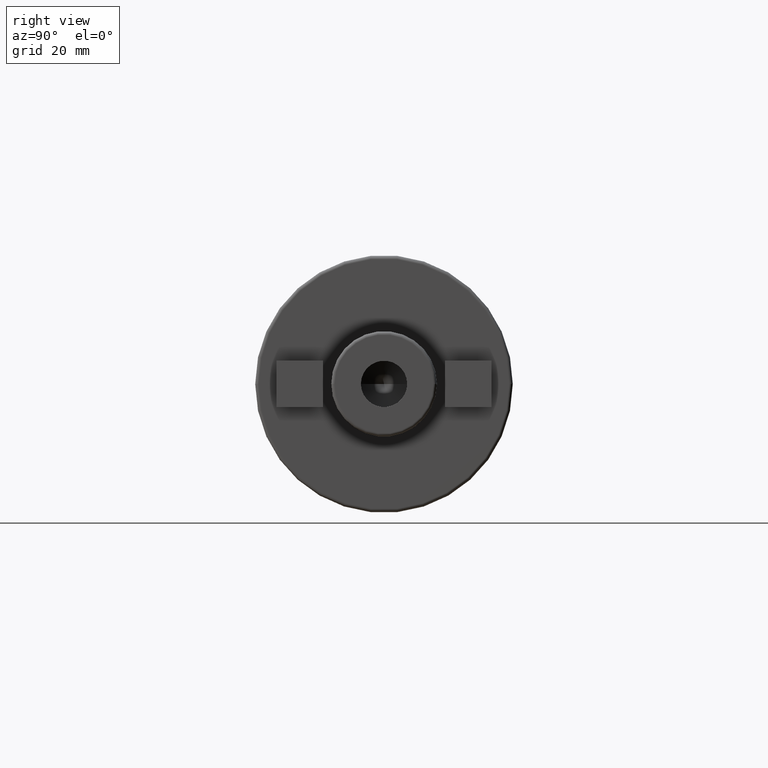
[diagram: clean part render]
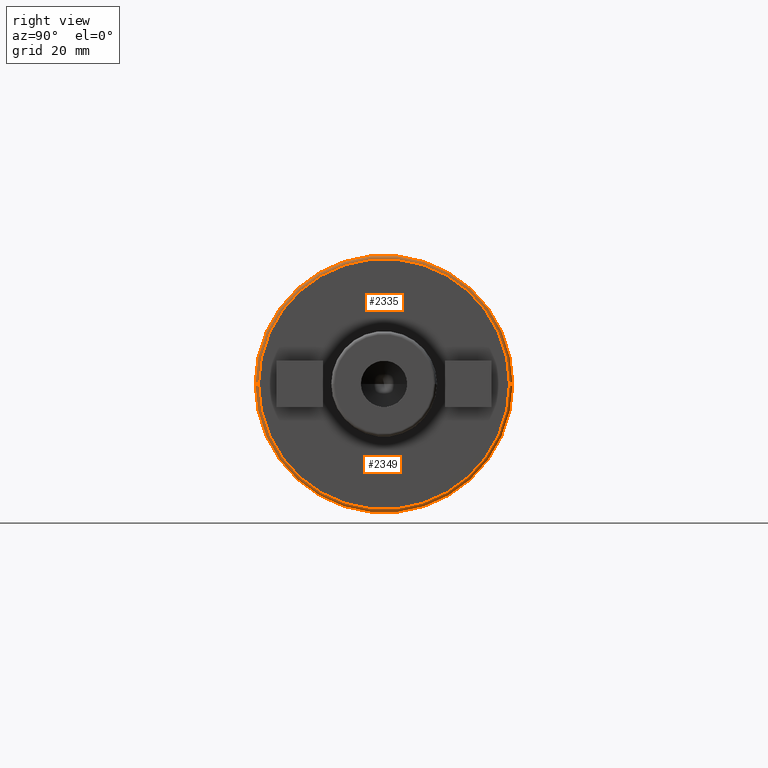
[diagram: same view with one multi-face feature highlighted, each face labeled with its STEP entity id]
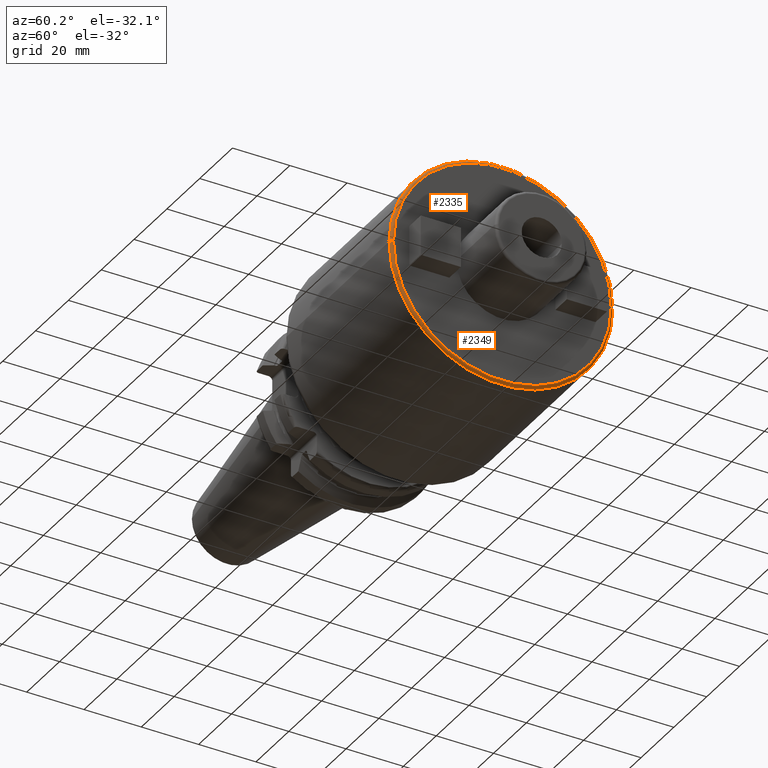
[diagram: same view with one multi-face feature highlighted, each face labeled with its STEP entity id]
A machine part, right view. The highlighted faces form ONE feature: a constant-radius fillet chain: 2 tangent blend faces with common blend radius 1 mm. The faces share edges in the B-rep.
A second angle (auxiliary view) of the same feature is appended — it is thin or edge-on in the first view.
Their STEP definitions:
[1] entity #2335 (Torus):
#377=CARTESIAN_POINT('',(9.9E1,0.E0,0.E0));
#378=DIRECTION('',(1.E0,0.E0,0.E0));
#379=DIRECTION('',(0.E0,1.E0,0.E0));
#380=AXIS2_PLACEMENT_3D('',#377,#378,#379);
#387=CARTESIAN_POINT('',(9.9E1,-3.8E1,0.E0));
#388=DIRECTION('',(0.E0,0.E0,-1.E0));
#389=DIRECTION('',(1.E0,0.E0,0.E0));
#390=AXIS2_PLACEMENT_3D('',#387,#388,#389);
#392=CARTESIAN_POINT('',(9.9E1,3.8E1,0.E0));
#393=DIRECTION('',(0.E0,0.E0,1.E0));
#394=DIRECTION('',(1.E0,-2.131628207280E-14,0.E0));
#395=AXIS2_PLACEMENT_3D('',#392,#393,#394);
#430=CARTESIAN_POINT('',(1.E2,0.E0,0.E0));
#431=DIRECTION('',(1.E0,0.E0,0.E0));
#432=DIRECTION('',(0.E0,1.E0,0.E0));
#433=AXIS2_PLACEMENT_3D('',#430,#431,#432);
#1754=CARTESIAN_POINT('',(9.9E1,-3.9E1,0.E0));
#1755=CARTESIAN_POINT('',(9.9E1,3.9E1,0.E0));
#1756=VERTEX_POINT('',#1754);
#1757=VERTEX_POINT('',#1755);
#1758=CARTESIAN_POINT('',(1.E2,-3.8E1,0.E0));
#1759=CARTESIAN_POINT('',(1.E2,3.8E1,0.E0));
#1760=VERTEX_POINT('',#1758);
#1761=VERTEX_POINT('',#1759);
#2321=CARTESIAN_POINT('',(9.9E1,0.E0,0.E0));
#2322=DIRECTION('',(1.E0,0.E0,0.E0));
#2323=DIRECTION('',(0.E0,-9.999928138765E-1,-3.791067842024E-3));
#2324=AXIS2_PLACEMENT_3D('',#2321,#2322,#2323);
#2325=TOROIDAL_SURFACE('',#2324,3.8E1,1.E0);
#2326=ORIENTED_EDGE('',*,*,#2311,.F.);
#2328=ORIENTED_EDGE('',*,*,#2327,.F.);
#2330=ORIENTED_EDGE('',*,*,#2329,.T.);
#2332=ORIENTED_EDGE('',*,*,#2331,.T.);
#2333=EDGE_LOOP('',(#2326,#2328,#2330,#2332));
#2334=FACE_OUTER_BOUND('',#2333,.F.);
#2335=ADVANCED_FACE('',(#2334),#2325,.T.);
#381=CIRCLE('',#380,3.9E1);
#391=CIRCLE('',#390,1.E0);
#396=CIRCLE('',#395,1.E0);
#434=CIRCLE('',#433,3.8E1);
#2311=EDGE_CURVE('',#1757,#1756,#381,.T.);
#2327=EDGE_CURVE('',#1761,#1757,#396,.T.);
#2329=EDGE_CURVE('',#1761,#1760,#434,.T.);
#2331=EDGE_CURVE('',#1760,#1756,#391,.T.);
[2] entity #2349 (Torus):
#387=CARTESIAN_POINT('',(9.9E1,-3.8E1,0.E0));
#388=DIRECTION('',(0.E0,0.E0,-1.E0));
#389=DIRECTION('',(1.E0,0.E0,0.E0));
#390=AXIS2_PLACEMENT_3D('',#387,#388,#389);
#392=CARTESIAN_POINT('',(9.9E1,3.8E1,0.E0));
#393=DIRECTION('',(0.E0,0.E0,1.E0));
#394=DIRECTION('',(1.E0,-2.131628207280E-14,0.E0));
#395=AXIS2_PLACEMENT_3D('',#392,#393,#394);
#397=CARTESIAN_POINT('',(9.9E1,0.E0,0.E0));
#398=DIRECTION('',(1.E0,0.E0,0.E0));
#399=DIRECTION('',(0.E0,-1.E0,0.E0));
#400=AXIS2_PLACEMENT_3D('',#397,#398,#399);
#425=CARTESIAN_POINT('',(1.E2,0.E0,0.E0));
#426=DIRECTION('',(1.E0,0.E0,0.E0));
#427=DIRECTION('',(0.E0,-1.E0,0.E0));
#428=AXIS2_PLACEMENT_3D('',#425,#426,#427);
#1754=CARTESIAN_POINT('',(9.9E1,-3.9E1,0.E0));
#1755=CARTESIAN_POINT('',(9.9E1,3.9E1,0.E0));
#1756=VERTEX_POINT('',#1754);
#1757=VERTEX_POINT('',#1755);
#1758=CARTESIAN_POINT('',(1.E2,-3.8E1,0.E0));
#1759=CARTESIAN_POINT('',(1.E2,3.8E1,0.E0));
#1760=VERTEX_POINT('',#1758);
#1761=VERTEX_POINT('',#1759);
#2336=CARTESIAN_POINT('',(9.9E1,0.E0,0.E0));
#2337=DIRECTION('',(1.E0,0.E0,0.E0));
#2338=DIRECTION('',(0.E0,9.999928138765E-1,3.791067842024E-3));
#2339=AXIS2_PLACEMENT_3D('',#2336,#2337,#2338);
#2340=TOROIDAL_SURFACE('',#2339,3.8E1,1.E0);
#2342=ORIENTED_EDGE('',*,*,#2341,.F.);
#2343=ORIENTED_EDGE('',*,*,#2331,.F.);
#2345=ORIENTED_EDGE('',*,*,#2344,.T.);
#2346=ORIENTED_EDGE('',*,*,#2327,.T.);
#2347=EDGE_LOOP('',(#2342,#2343,#2345,#2346));
#2348=FACE_OUTER_BOUND('',#2347,.F.);
#2349=ADVANCED_FACE('',(#2348),#2340,.T.);
#391=CIRCLE('',#390,1.E0);
#396=CIRCLE('',#395,1.E0);
#401=CIRCLE('',#400,3.9E1);
#429=CIRCLE('',#428,3.8E1);
#2327=EDGE_CURVE('',#1761,#1757,#396,.T.);
#2331=EDGE_CURVE('',#1760,#1756,#391,.T.);
#2341=EDGE_CURVE('',#1756,#1757,#401,.T.);
#2344=EDGE_CURVE('',#1760,#1761,#429,.T.);